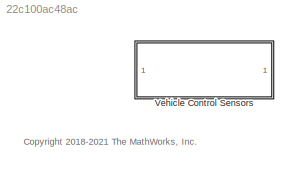
MODEL slx_22c100ac48ac
KIND library
CONFIG AbsTol = auto
CONFIG EnableMultiTasking = off
CONFIG FixedStep = auto
CONFIG MaxStep = auto
CONFIG MinStep = auto
CONFIG RelTol = 1e-3
CONFIG SampleTimeConstraint = Unconstrained
CONFIG SolverName = VariableStepAuto
CONFIG StartTime = 0.0
CONFIG StopTime = 10.0
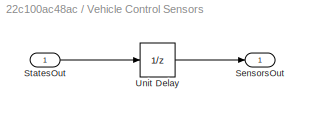
BLOCK [SubSystem] Vehicle Control Sensors
  Ports = [1, 1]
  RequestExecContextInheritance = off
BLOCK [Outport] Vehicle Control Sensors/SensorsOut
  OutDataTypeStr = Bus: StatesOutBus
  VectorParamsAs1DForOutWhenUnconnected = off
BLOCK [Inport] Vehicle Control Sensors/StatesOut
  OutDataTypeStr = Bus: StatesOutBus
BLOCK [UnitDelay] Vehicle Control Sensors/Unit Delay
  HasFrameUpgradeWarning = on
  SampleTime = CubeSatTimeStep
ANNOTATION (root): <copyright redacted>
LINE Vehicle Control Sensors/StatesOut:1 -> Vehicle Control Sensors/Unit Delay:1
LINE Vehicle Control Sensors/Unit Delay:1 -> Vehicle Control Sensors/SensorsOut:1
